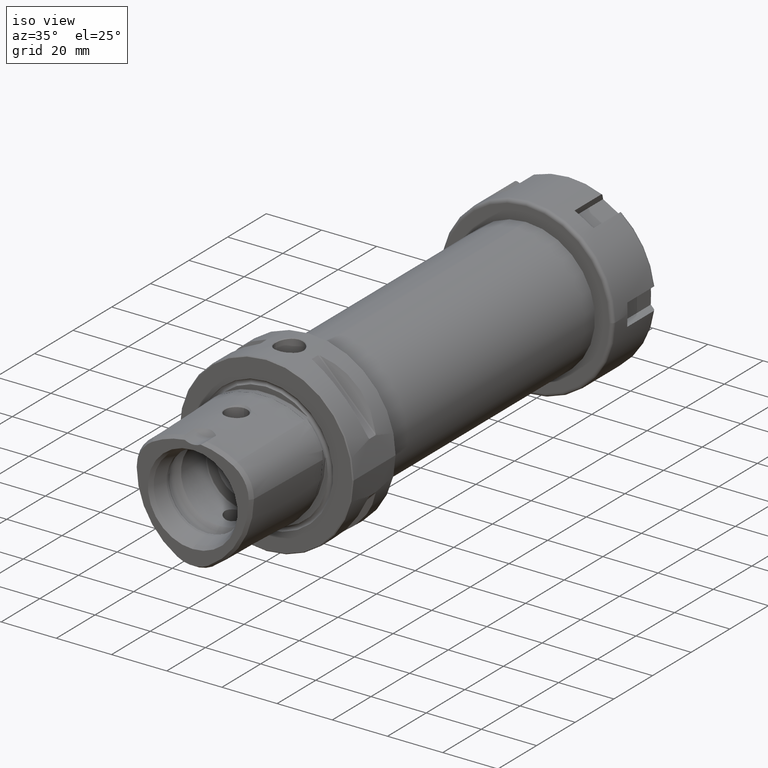
[diagram: clean part render]
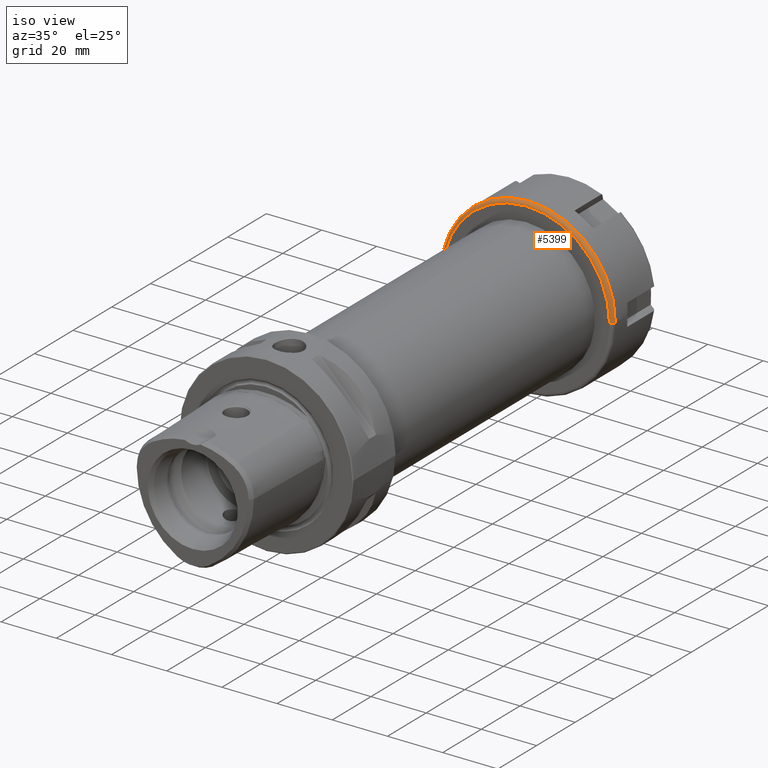
[diagram: same view with one face highlighted and labeled with its STEP entity id]
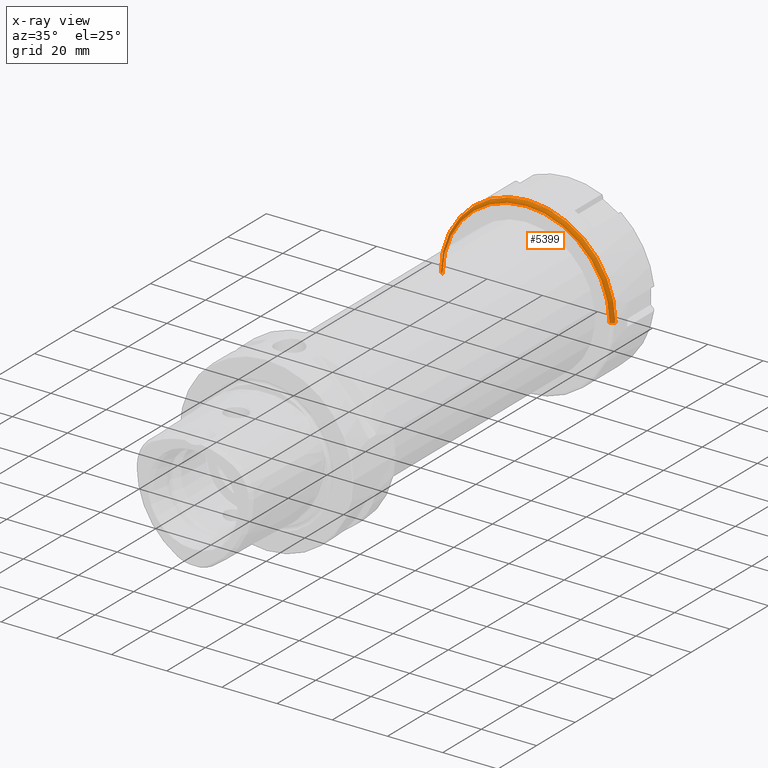
[diagram: x-ray of the same camera — body ghosted, the highlighted face saturated]
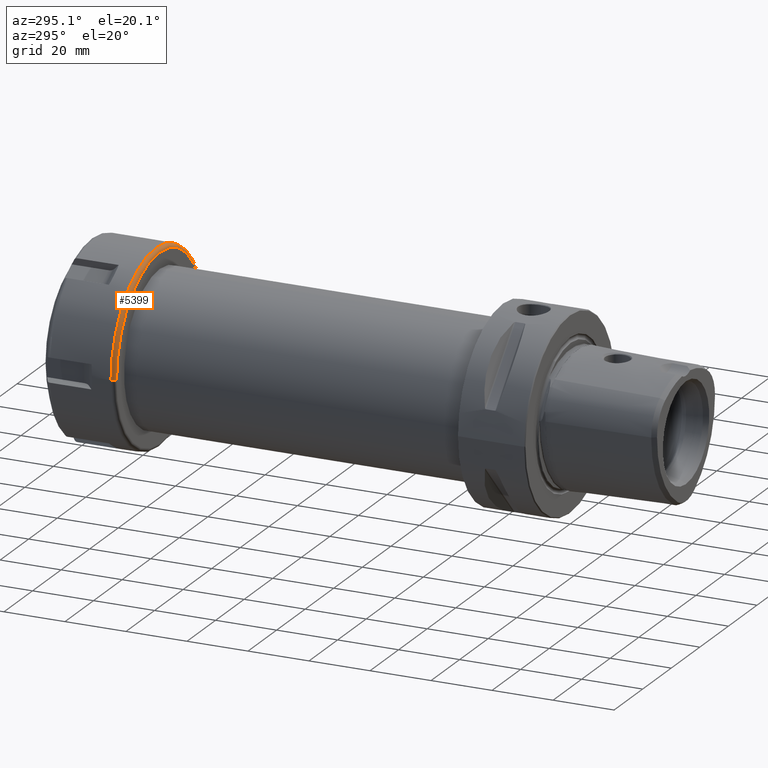
[diagram: same view with one face highlighted and labeled with its STEP entity id]
A machine part, iso view. The second image highlights one B-rep face of the part: STEP entity #5399.
The next image is the same camera in x-ray: the body ghosted, the highlighted face saturated — about 3% of this face is hidden behind the body in this view.
A second angle (auxiliary view) of the same face is appended — the face is thin or edge-on in the first view.
In plain terms, the highlighted toroidal blend (fillet) surface has major radius 30.25 mm and minor (blend) radius 1.25 mm.
Its self-contained STEP definition (entity closure, byte-faithful):
#4604=CARTESIAN_POINT('',(1.25E0,0.E0,0.E0));
#4605=DIRECTION('',(-1.E0,0.E0,0.E0));
#4606=DIRECTION('',(0.E0,-1.E0,0.E0));
#4607=AXIS2_PLACEMENT_3D('',#4604,#4605,#4606);
#4659=CARTESIAN_POINT('',(1.25E0,-3.024999999997E1,-3.128053371881E-14));
#4660=DIRECTION('',(0.E0,0.E0,1.E0));
#4661=DIRECTION('',(-1.E0,0.E0,0.E0));
#4662=AXIS2_PLACEMENT_3D('',#4659,#4660,#4661);
#4669=CARTESIAN_POINT('',(0.E0,0.E0,0.E0));
#4670=DIRECTION('',(-1.E0,0.E0,0.E0));
#4671=DIRECTION('',(0.E0,-1.E0,0.E0));
#4672=AXIS2_PLACEMENT_3D('',#4669,#4670,#4671);
#4674=CARTESIAN_POINT('',(1.25E0,3.024999999997E1,0.E0));
#4675=DIRECTION('',(0.E0,0.E0,-1.E0));
#4676=DIRECTION('',(-1.E0,0.E0,0.E0));
#4677=AXIS2_PLACEMENT_3D('',#4674,#4675,#4676);
#4827=CARTESIAN_POINT('',(0.E0,3.024999999997E1,1.713825516537E-14));
#4828=CARTESIAN_POINT('',(1.719369494877E-14,-3.024999999997E1,
-3.427651033073E-14));
#4829=VERTEX_POINT('',#4827);
#4830=VERTEX_POINT('',#4828);
#4831=CARTESIAN_POINT('',(1.25E0,3.149999999997E1,1.784644752757E-14));
#4832=CARTESIAN_POINT('',(1.25E0,-3.149999999997E1,-2.170408494488E-14));
#4833=VERTEX_POINT('',#4831);
#4834=VERTEX_POINT('',#4832);
#5385=CARTESIAN_POINT('',(1.25E0,0.E0,0.E0));
#5386=DIRECTION('',(1.E0,0.E0,0.E0));
#5387=DIRECTION('',(0.E0,-9.999759566163E-1,-6.934420614304E-3));
#5388=AXIS2_PLACEMENT_3D('',#5385,#5386,#5387);
#5389=TOROIDAL_SURFACE('',#5388,3.024999999997E1,1.25E0);
#5391=ORIENTED_EDGE('',*,*,#5390,.T.);
#5393=ORIENTED_EDGE('',*,*,#5392,.T.);
#5394=ORIENTED_EDGE('',*,*,#5359,.F.);
#5396=ORIENTED_EDGE('',*,*,#5395,.F.);
#5397=EDGE_LOOP('',(#5391,#5393,#5394,#5396));
#5398=FACE_OUTER_BOUND('',#5397,.F.);
#5399=ADVANCED_FACE('',(#5398),#5389,.T.);
#4608=CIRCLE('',#4607,3.149999999997E1);
#4663=CIRCLE('',#4662,1.25E0);
#4673=CIRCLE('',#4672,3.024999999997E1);
#4678=CIRCLE('',#4677,1.25E0);
#5359=EDGE_CURVE('',#4834,#4833,#4608,.T.);
#5390=EDGE_CURVE('',#4830,#4829,#4673,.T.);
#5392=EDGE_CURVE('',#4829,#4833,#4678,.T.);
#5395=EDGE_CURVE('',#4830,#4834,#4663,.T.);